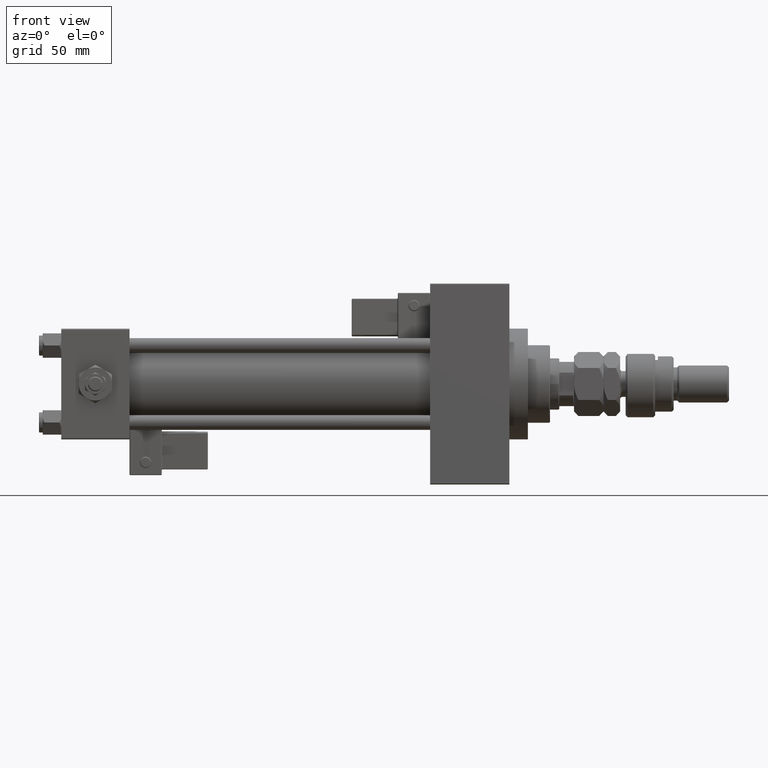
[diagram: clean part render]
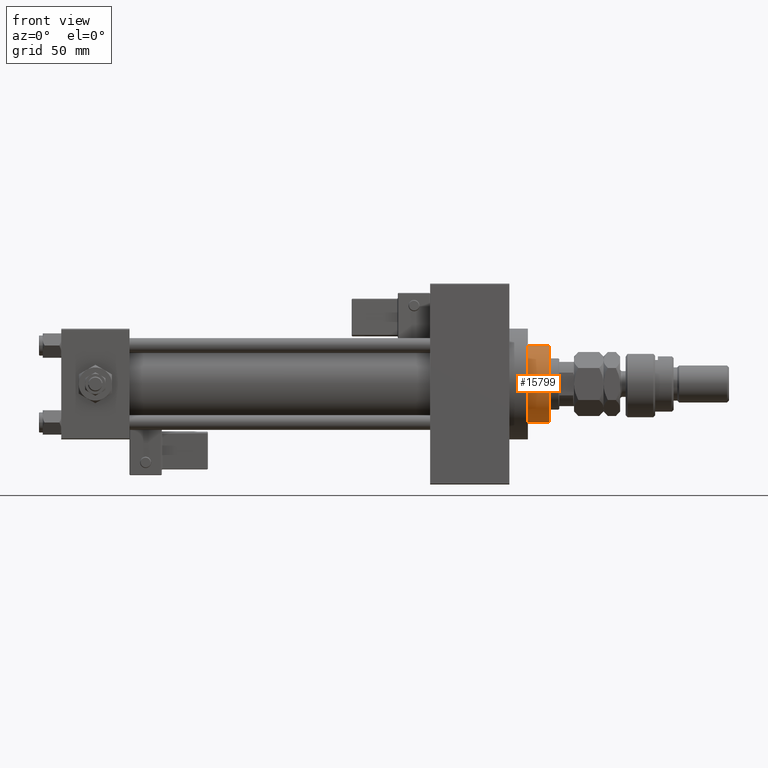
[diagram: same view with one face highlighted and labeled with its STEP entity id]
A machine part, front view. The second image highlights one B-rep face of the part: STEP entity #15799.
In plain terms, the highlighted cylindrical surface (partial cylindrical patch) has radius 21 mm, axis along (-1, 0, 0).
Its self-contained STEP definition (entity closure, byte-faithful):
#1901 = VERTEX_POINT ( 'NONE', #44346 ) ;
#2256 = VECTOR ( 'NONE', #43500, 1000.000000000000000 ) ;
#3150 = ORIENTED_EDGE ( 'NONE', *, *, #26917, .F. ) ;
#5064 = VERTEX_POINT ( 'NONE', #47274 ) ;
#5956 = VERTEX_POINT ( 'NONE', #51288 ) ;
#7407 = DIRECTION ( 'NONE',  ( 1.000000000000000000, 0.000000000000000000, 0.000000000000000000 ) ) ;
#7516 = DIRECTION ( 'NONE',  ( -0.000000000000000000, -0.000000000000000000, -1.000000000000000000 ) ) ;
#8876 = AXIS2_PLACEMENT_3D ( 'NONE', #47110, #13782, #7407 ) ;
#9215 = DIRECTION ( 'NONE',  ( 0.000000000000000000, 0.000000000000000000, 1.000000000000000000 ) ) ;
#10201 = CIRCLE ( 'NONE', #52114, 21.00000000000000000 ) ;
#12223 = EDGE_CURVE ( 'NONE', #5064, #48484, #13973, .T. ) ;
#13104 = AXIS2_PLACEMENT_3D ( 'NONE', #54074, #9215, #25365 ) ;
#13285 = EDGE_LOOP ( 'NONE', ( #20845, #50527, #15702, #51858, #17709, #3150 ) ) ;
#13782 = DIRECTION ( 'NONE',  ( 0.000000000000000000, 0.000000000000000000, 1.000000000000000000 ) ) ;
#13973 = CIRCLE ( 'NONE', #13104, 21.00000000000000000 ) ;
#14458 = CARTESIAN_POINT ( 'NONE',  ( 20.96385542168674476, 1.231570484631382856, 43.25999999999999801 ) ) ;
#15498 = AXIS2_PLACEMENT_3D ( 'NONE', #34863, #50716, #42267 ) ;
#15702 = ORIENTED_EDGE ( 'NONE', *, *, #12223, .T. ) ;
#15799 = ADVANCED_FACE ( 'NONE', ( #40777 ), #41035, .T. ) ;
#17709 = ORIENTED_EDGE ( 'NONE', *, *, #32921, .T. ) ;
#18543 = EDGE_CURVE ( 'NONE', #48484, #5956, #50778, .T. ) ;
#19438 = VERTEX_POINT ( 'NONE', #49573 ) ;
#20845 = ORIENTED_EDGE ( 'NONE', *, *, #32449, .T. ) ;
#23339 = CIRCLE ( 'NONE', #15498, 21.00000000000000000 ) ;
#24635 = AXIS2_PLACEMENT_3D ( 'NONE', #28195, #53340, #36953 ) ;
#24886 = CARTESIAN_POINT ( 'NONE',  ( 0.000000000000000000, 0.000000000000000000, 43.25999999999999801 ) ) ;
#25365 = DIRECTION ( 'NONE',  ( 1.000000000000000000, 0.000000000000000000, 0.000000000000000000 ) ) ;
#26917 = EDGE_CURVE ( 'NONE', #19438, #1901, #31726, .T. ) ;
#28195 = CARTESIAN_POINT ( 'NONE',  ( 0.000000000000000000, 0.000000000000000000, 55.26000000000000512 ) ) ;
#31475 = CARTESIAN_POINT ( 'NONE',  ( 21.00000000000000000, 2.571758278209441661E-15, 54.75999999999999091 ) ) ;
#31726 = LINE ( 'NONE', #35819, #2256 ) ;
#32449 = EDGE_CURVE ( 'NONE', #19438, #45544, #23339, .T. ) ;
#32921 = EDGE_CURVE ( 'NONE', #5956, #1901, #10201, .T. ) ;
#33378 = VECTOR ( 'NONE', #7516, 1000.000000000000000 ) ;
#34863 = CARTESIAN_POINT ( 'NONE',  ( 0.000000000000000000, 0.000000000000000000, 54.75999999999999091 ) ) ;
#35819 = CARTESIAN_POINT ( 'NONE',  ( -21.00000000000000000, 0.000000000000000000, 55.26000000000000512 ) ) ;
#36953 = DIRECTION ( 'NONE',  ( -1.000000000000000000, 0.000000000000000000, 0.000000000000000000 ) ) ;
#40777 = FACE_OUTER_BOUND ( 'NONE', #13285, .T. ) ;
#41035 = CYLINDRICAL_SURFACE ( 'NONE', #24635, 21.00000000000000000 ) ;
#42077 = DIRECTION ( 'NONE',  ( 1.000000000000000000, 0.000000000000000000, 0.000000000000000000 ) ) ;
#42267 = DIRECTION ( 'NONE',  ( 1.000000000000000000, 0.000000000000000000, 0.000000000000000000 ) ) ;
#43500 = DIRECTION ( 'NONE',  ( -0.000000000000000000, -0.000000000000000000, -1.000000000000000000 ) ) ;
#43892 = CARTESIAN_POINT ( 'NONE',  ( 21.00000000000000000, 2.571758278209441661E-15, 55.26000000000000512 ) ) ;
#44346 = CARTESIAN_POINT ( 'NONE',  ( -21.00000000000000000, 0.000000000000000000, 43.25999999999999801 ) ) ;
#45544 = VERTEX_POINT ( 'NONE', #31475 ) ;
#47110 = CARTESIAN_POINT ( 'NONE',  ( 0.000000000000000000, 0.000000000000000000, 43.25999999999999801 ) ) ;
#47274 = CARTESIAN_POINT ( 'NONE',  ( 21.00000000000000000, 2.571758278209441661E-15, 43.25999999999999801 ) ) ;
#48484 = VERTEX_POINT ( 'NONE', #14458 ) ;
#49573 = CARTESIAN_POINT ( 'NONE',  ( -21.00000000000000000, 0.000000000000000000, 54.75999999999999091 ) ) ;
#49745 = DIRECTION ( 'NONE',  ( 0.000000000000000000, 0.000000000000000000, 1.000000000000000000 ) ) ;
#50527 = ORIENTED_EDGE ( 'NONE', *, *, #52309, .T. ) ;
#50716 = DIRECTION ( 'NONE',  ( 0.000000000000000000, 0.000000000000000000, -1.000000000000000000 ) ) ;
#50778 = CIRCLE ( 'NONE', #8876, 21.00000000000000000 ) ;
#51288 = CARTESIAN_POINT ( 'NONE',  ( -20.96385542168674831, 1.231570484631382412, 43.25999999999999801 ) ) ;
#51858 = ORIENTED_EDGE ( 'NONE', *, *, #18543, .T. ) ;
#52114 = AXIS2_PLACEMENT_3D ( 'NONE', #24886, #49745, #42077 ) ;
#52309 = EDGE_CURVE ( 'NONE', #45544, #5064, #52620, .T. ) ;
#52620 = LINE ( 'NONE', #43892, #33378 ) ;
#53340 = DIRECTION ( 'NONE',  ( -0.000000000000000000, -0.000000000000000000, -1.000000000000000000 ) ) ;
#54074 = CARTESIAN_POINT ( 'NONE',  ( 0.000000000000000000, 0.000000000000000000, 43.25999999999999801 ) ) ;